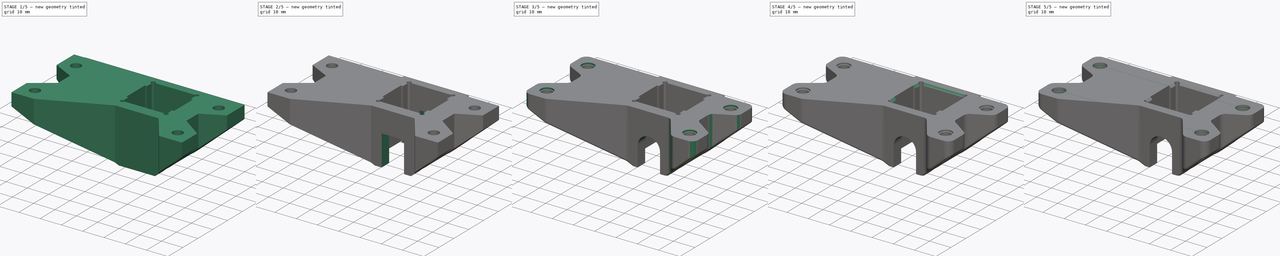
[diagram: build sequence overview — one tinted view per stage of 5, left to right]
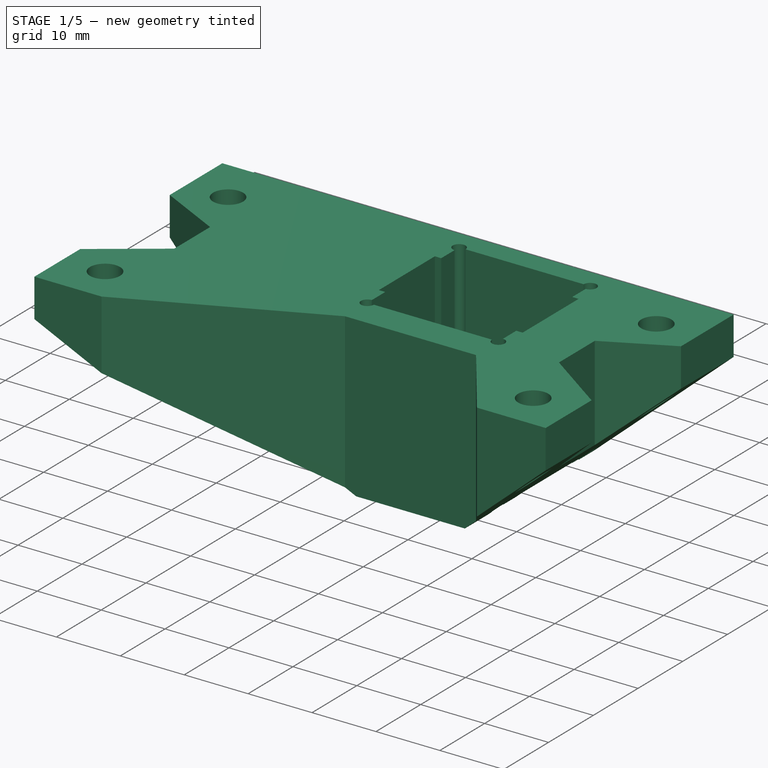
[diagram: stage 1 of 5 — iso view after this stage's code; geometry added in this stage tinted green]
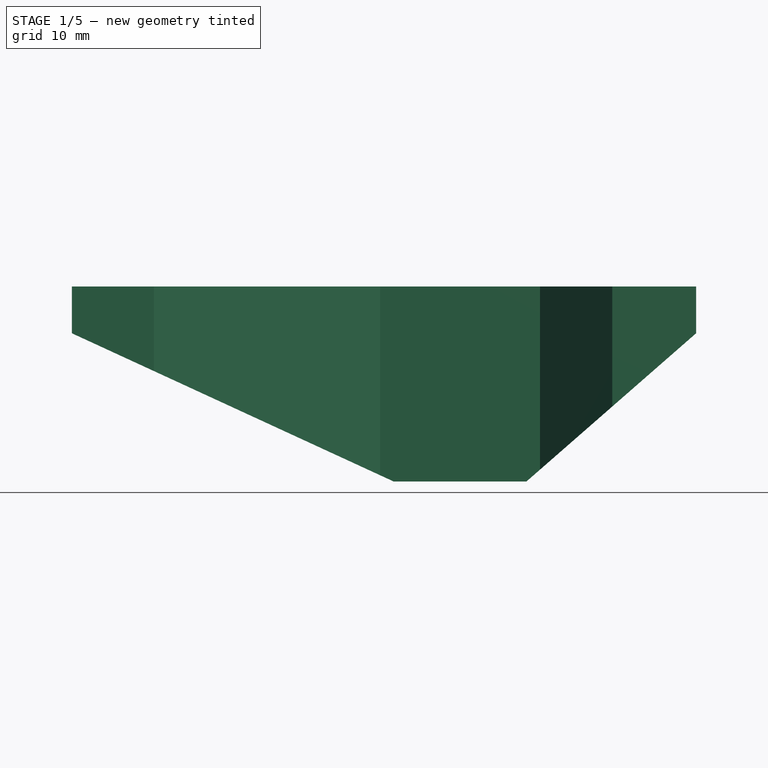
[diagram: stage 1 of 5 — front view after this stage's code; geometry added in this stage tinted green]
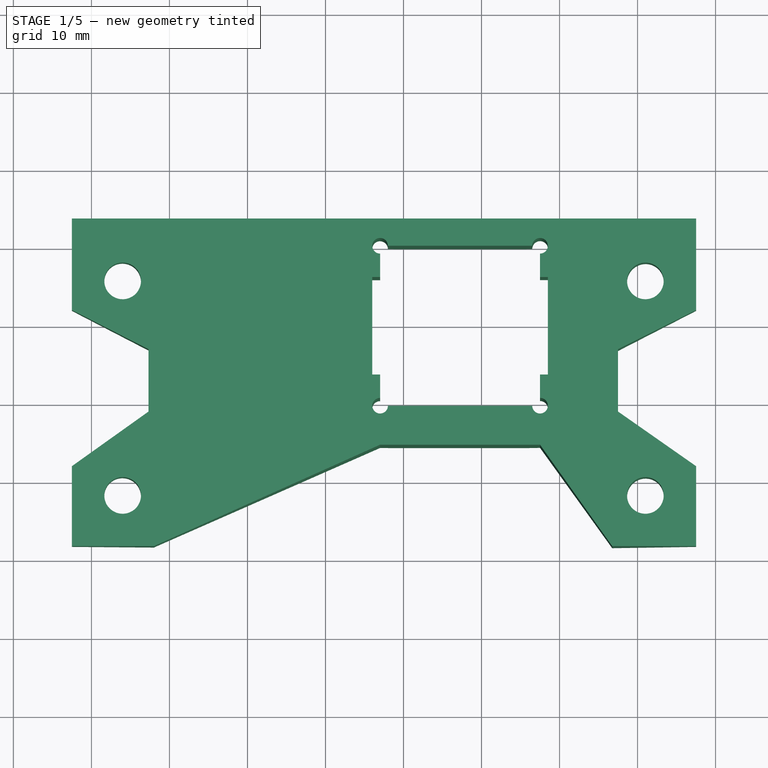
[diagram: stage 1 of 5 — top view after this stage's code; geometry added in this stage tinted green]
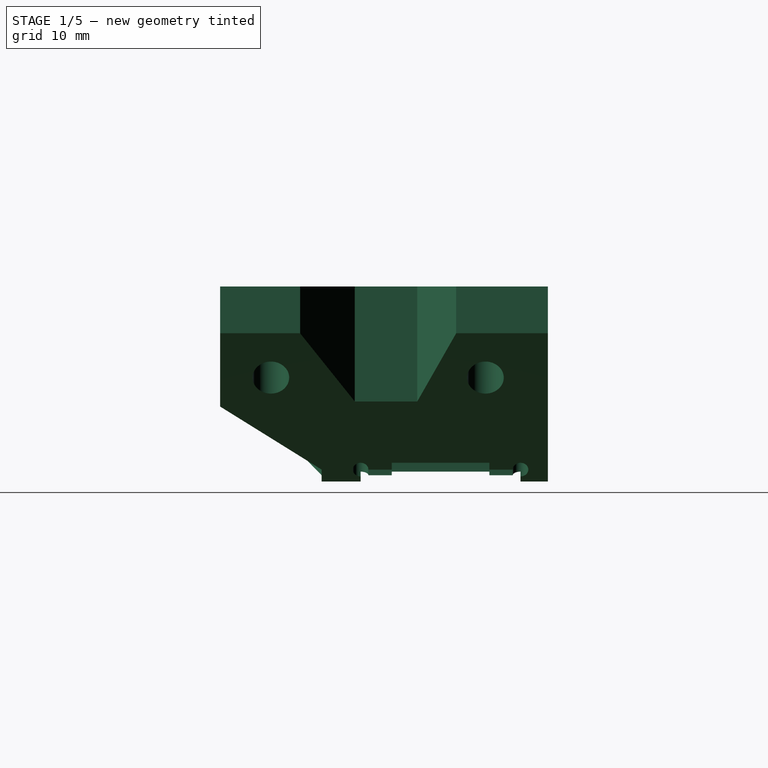
[diagram: stage 1 of 5 — right view after this stage's code; geometry added in this stage tinted green]
FCSTD DOCUMENT  (FreeCAD 0.18R4 (GitTag))
Label: Y_idler_housing_v0.2
License: CreativeCommons Attribution-ShareAlike
LicenseURL: http://creativecommons.org/licenses/by-sa/4.0/
objects: Sketcher::SketchObject×10, PartDesign::Pocket×9, PartDesign::Fillet×6, App::FeaturePython×2, PartDesign::Chamfer×2, PartDesign::Pad×1, PartDesign::Body×1
note: 39 computed .brp shape members not serialized (recipe doc carries the construction recipe); baked Part::Feature solids carry a one-line shape summary decoded from their .brp

FEATURE [App::FeaturePython] circularEdgeConstraint01  label="circularEdgeConstraint01__y_end_plate_step1_01"  # a2plus constraint (typed FeaturePython)
  Object1 = Y_idler_housing_v3_01
  Object2 = y_end_plate_step1_01
  SubElement1 = Edge64
  SubElement2 = Edge52
  Type = circularEdge
  directionConstraint = 1
  lockRotation = false
  offset = 0
FEATURE [App::FeaturePython] circularEdgeConstraint01_mirror  label="circularEdgeConstraint01__Y_idler_housing_v3_01"  # a2plus constraint (typed FeaturePython)
  Object1 = Y_idler_housing_v3_01
  Object2 = y_end_plate_step1_01
  SubElement1 = Edge64
  SubElement2 = Edge52
  Type = circularEdge
  directionConstraint = 1
  lockRotation = false
  offset = 0
FEATURE [Sketcher::SketchObject] Sketch
  MapMode = 5
  Support = -> [XY_Plane]
  sketch-geometry (16):
    g0: LineSegment StartX=-42.5 StartY=11.5 StartZ=0 EndX=-42.5 EndY=21.75 EndZ=0
    g1: LineSegment StartX=-42.5 StartY=21.75 StartZ=0 EndX=-32.6869 EndY=28.75 EndZ=0
    g2: LineSegment StartX=-32.6869 StartY=28.75 StartZ=0 EndX=-32.6869 EndY=36.75 EndZ=0
    g3: LineSegment StartX=-32.6869 StartY=36.75 StartZ=0 EndX=-42.5 EndY=41.75 EndZ=0
    g4: LineSegment StartX=-42.5 StartY=41.75 StartZ=0 EndX=-42.5 EndY=53.5 EndZ=0
    g5: LineSegment StartX=-42.5 StartY=53.5 StartZ=0 EndX=37.5 EndY=53.5 EndZ=0
    g6: LineSegment StartX=37.5 StartY=53.5 StartZ=0 EndX=37.5 EndY=41.75 EndZ=0
    g7: LineSegment StartX=37.5 StartY=41.75 StartZ=0 EndX=27.5 EndY=36.7642 EndZ=0
    g8: LineSegment StartX=27.5 StartY=36.7642 StartZ=0 EndX=27.5 EndY=28.7521 EndZ=0
    g9: LineSegment StartX=27.5 StartY=28.7521 StartZ=0 EndX=37.5 EndY=21.75 EndZ=0
    g10: LineSegment StartX=37.5 StartY=21.75 StartZ=0 EndX=37.5 EndY=11.5 EndZ=0
    g11: LineSegment StartX=37.5 StartY=11.5 StartZ=0 EndX=26.75 EndY=11.5 EndZ=0
    g12: LineSegment StartX=26.75 StartY=11.5 StartZ=0 EndX=17.5 EndY=24.5 EndZ=0
    g13: LineSegment StartX=17.5 StartY=24.5 StartZ=0 EndX=-3 EndY=24.5 EndZ=0
    g14: LineSegment StartX=-3 StartY=24.5 StartZ=0 EndX=-32 EndY=11.5 EndZ=0
    g15: LineSegment StartX=-32 StartY=11.5 StartZ=0 EndX=-42.5 EndY=11.5 EndZ=0
  constraints (48):
    c: Vertical(g0)
    c: Coincident(g0,g1)
    c: Coincident(g1,g2)
    c: Vertical(g2)
    c: Coincident(g2,g3)
    c: Coincident(g3,g4)
    c: Vertical(g4)
    c: Coincident(g4,g5)
    c: Horizontal(g5)
    c: DistanceY(g0) = 11.5
    c: DistanceX(g0) = -42.5
    c: DistanceX(g3,g0) = 0
    c: DistanceY(g4) = 53.5
    c: Coincident(g5,g6)
    c: Vertical(g6)
    c: Coincident(g6,g7)
    c: Coincident(g7,g8)
    c: Vertical(g8)
    c: Coincident(g8,g9)
    c: Coincident(g9,g10)
    c: Vertical(g10)
    c: DistanceX(g10) = 37.5
    c: DistanceY(g0,g0) = 10.25
    c: Equal(g10,g0)
    c: DistanceY(g4,g4) = 11.75
    c: Equal(g6,g4)
    c: DistanceX(g9,g6) = 0
    c: Angle(g9) = -0.610865
    c: DistanceX(g9,g9) = 10
    c: Angle(g7) = -2.67908
    c: Coincident(g10,g11)
    c: Horizontal(g11)
    c: Coincident(g11,g12)
    c: Coincident(g12,g13)
    c: Horizontal(g13)
    c: Coincident(g13,g14)
    c: Coincident(g14,g15)
    c: Coincident(g15,g0)
    c: Horizontal(g15)
    c: DistanceX(g15,g15) = 10.5
    c: DistanceX(g14,g14) = 29
    c: DistanceY(g14,g14) = 13
    c: DistanceX(g13,g13) = 20.5
    c: DistanceY(g10) = 11.5
    c: DistanceX(g12,g12) = 9.25
    c: Angle(g3) = 2.67035
    c: DistanceY(g3,g3) = 5
    c: DistanceY(g2,g2) = 8
FEATURE [PartDesign::Pad] Pad
  Length = 25
  Length2 = 100
  Profile = -> Sketch
  Reversed = true
  Type = 0
FEATURE [Sketcher::SketchObject] Sketch001
  ExternalGeometry = -> [Pad]
  MapMode = 5
  Placement = pos=(0,53.5,0) rot=(0,0.707107,0.707107;3.14159rad)
  Support = -> [Pad]
  sketch-geometry (6):
    g0: LineSegment StartX=42.5 StartY=-6 StartZ=0 EndX=1.25 EndY=-25 EndZ=0
    g1: LineSegment StartX=1.25 StartY=-25 StartZ=0 EndX=42.5 EndY=-25 EndZ=0
    g2: LineSegment StartX=42.5 StartY=-25 StartZ=0 EndX=42.5 EndY=-6 EndZ=0
    g3: LineSegment StartX=-37.5 StartY=-6 StartZ=0 EndX=-15.75 EndY=-25 EndZ=0
    g4: LineSegment StartX=-15.75 StartY=-25 StartZ=0 EndX=-37.5 EndY=-25 EndZ=0
    g5: LineSegment StartX=-37.5 StartY=-25 StartZ=0 EndX=-37.5 EndY=-6 EndZ=0
  constraints (16):
    c: Coincident(g0,g1)
    c: Horizontal(g1)
    c: Coincident(g1,g2)
    c: Coincident(g2,g0)
    c: Coincident(g3,g4)
    c: Horizontal(g4)
    c: Coincident(g4,g5)
    c: Coincident(g5,g3)
    c: DistanceY(g5,g5) = 19
    c: DistanceX(g4,g4) = 21.75
    c: DistanceY(g2,g2) = 19
    c: DistanceX(g1,g1) = 41.25
    c: Coincident(g1,g-4)
    c: Coincident(g4,g-3)
    c: PointOnObject(g3,g-3)
    c: PointOnObject(g0,g-4)
FEATURE [PartDesign::Pocket] Pocket
  BaseFeature = -> Pad
  Length = 5
  Length2 = 100
  Profile = -> Sketch001
  Type = 1
FEATURE [Sketcher::SketchObject] Sketch002
  ExternalGeometry = -> [Pocket]
  MapMode = 5
  Placement = pos=(0,0,-25) rot=(1,0,0;3.14159rad)
  sketch-geometry (12):
    g0: LineSegment StartX=-3 StartY=-29.5 StartZ=0 EndX=17.5 EndY=-29.5 EndZ=0
    g1: LineSegment StartX=17.5 StartY=-29.5 StartZ=0 EndX=17.5 EndY=-50 EndZ=0
    g2: LineSegment StartX=17.5 StartY=-50 StartZ=0 EndX=-3 EndY=-50 EndZ=0
    g3: LineSegment StartX=-3 StartY=-50 StartZ=0 EndX=-3 EndY=-29.5 EndZ=0
    g4: Circle CenterX=31 CenterY=-18 CenterZ=0 NormalX=0 NormalY=0 NormalZ=1 AngleXU=0 Radius=2.35
    g5: Circle CenterX=31 CenterY=-45.5 CenterZ=0 NormalX=0 NormalY=0 NormalZ=1 AngleXU=0 Radius=2.35
    g6: Circle CenterX=-36 CenterY=-45.5 CenterZ=0 NormalX=0 NormalY=0 NormalZ=1 AngleXU=0 Radius=2.35
    g7: Circle CenterX=-36 CenterY=-18 CenterZ=0 NormalX=0 NormalY=0 NormalZ=1 AngleXU=0 Radius=2.35
    g8: LineSegment [constr] StartX=-36 StartY=-18 StartZ=0 EndX=31 EndY=-18 EndZ=0
    g9: LineSegment [constr] StartX=31 StartY=-18 StartZ=0 EndX=31 EndY=-45.5 EndZ=0
    g10: LineSegment [constr] StartX=31 StartY=-45.5 StartZ=0 EndX=-36 EndY=-45.5 EndZ=0
    g11: LineSegment [constr] StartX=-36 StartY=-45.5 StartZ=0 EndX=-36 EndY=-18 EndZ=0
  constraints (32):
    c: Coincident(g0,g1)
    c: Coincident(g1,g2)
    c: Coincident(g2,g3)
    c: Coincident(g3,g0)
    c: Horizontal(g0)
    c: Horizontal(g2)
    c: Vertical(g1)
    c: Vertical(g3)
    c: DistanceY(g3,g3) = 20.5
    c: Coincident(g8,g9)
    c: Coincident(g9,g10)
    c: Coincident(g10,g11)
    c: Coincident(g11,g8)
    c: Horizontal(g8)
    c: Horizontal(g10)
    c: Vertical(g9)
    c: Vertical(g11)
    c: Coincident(g8,g7)
    c: Coincident(g9,g5)
    c: Coincident(g4,g8)
    c: Coincident(g6,g10)
    c: Radius(g4) = 2.35
    c: Equal(g4,g5)
    c: Equal(g4,g6)
    c: Equal(g4,g7)
    c: DistanceX(g7,g-3) = -6.5
    c: DistanceY(g7,g-3) = 6.5
    c: DistanceX(g8,g8) = 67
    c: DistanceY(g9,g9) = 27.5
    c: DistanceX(g0,g-4) = 1.75
    c: DistanceY(g0,g-4) = 5
    c: DistanceX(g0,g0) = 20.5
FEATURE [PartDesign::Pocket] Pocket001
  BaseFeature = -> Pocket
  Length = 5
  Length2 = 100
  Profile = -> Sketch002
  Type = 1
FEATURE [Sketcher::SketchObject] Sketch003
  ExternalGeometry = -> [Pocket001]
  MapMode = 5
  Placement = pos=(0,0,-25) rot=(1,0,0;3.14159rad)
  sketch-geometry (8):
    g0: Circle CenterX=-3 CenterY=-29.5 CenterZ=0 NormalX=0 NormalY=0 NormalZ=1 AngleXU=0 Radius=1
    g1: Circle CenterX=17.5 CenterY=-29.5 CenterZ=0 NormalX=0 NormalY=0 NormalZ=1 AngleXU=0 Radius=1
    g2: Circle CenterX=17.5 CenterY=-50 CenterZ=0 NormalX=0 NormalY=0 NormalZ=1 AngleXU=0 Radius=1
    g3: Circle CenterX=-3 CenterY=-50 CenterZ=0 NormalX=0 NormalY=0 NormalZ=1 AngleXU=0 Radius=1
    g4: LineSegment StartX=-4 StartY=-33.5 StartZ=0 EndX=18.5 EndY=-33.5 EndZ=0
    g5: LineSegment StartX=18.5 StartY=-33.5 StartZ=0 EndX=18.5 EndY=-46 EndZ=0
    g6: LineSegment StartX=18.5 StartY=-46 StartZ=0 EndX=-4 EndY=-46 EndZ=0
    g7: LineSegment StartX=-4 StartY=-46 StartZ=0 EndX=-4 EndY=-33.5 EndZ=0
  constraints (21):
    c: Radius(g1) = 1
    c: Equal(g1,g0)
    c: Equal(g1,g3)
    c: Equal(g1,g2)
    c: Coincident(g4,g5)
    c: Coincident(g5,g6)
    c: Coincident(g6,g7)
    c: Coincident(g7,g4)
    c: Horizontal(g4)
    c: Horizontal(g6)
    c: Vertical(g5)
    c: Vertical(g7)
    c: DistanceX(g5,g2) = -1
    c: DistanceY(g5,g2) = -4
    c: DistanceY(g4,g0) = 4
    c: Coincident(g1,g-4)
    c: Coincident(g0,g-3)
    c: DistanceX(g0,g4) = -1
    c: DistanceX(g1,g4) = 1
    c: Coincident(g2,g-4)
    c: Coincident(g3,g-3)
FEATURE [PartDesign::Pocket] Pocket002
  BaseFeature = -> Pocket001
  Length = 5
  Length2 = 100
  Profile = -> Sketch003
  Type = 1
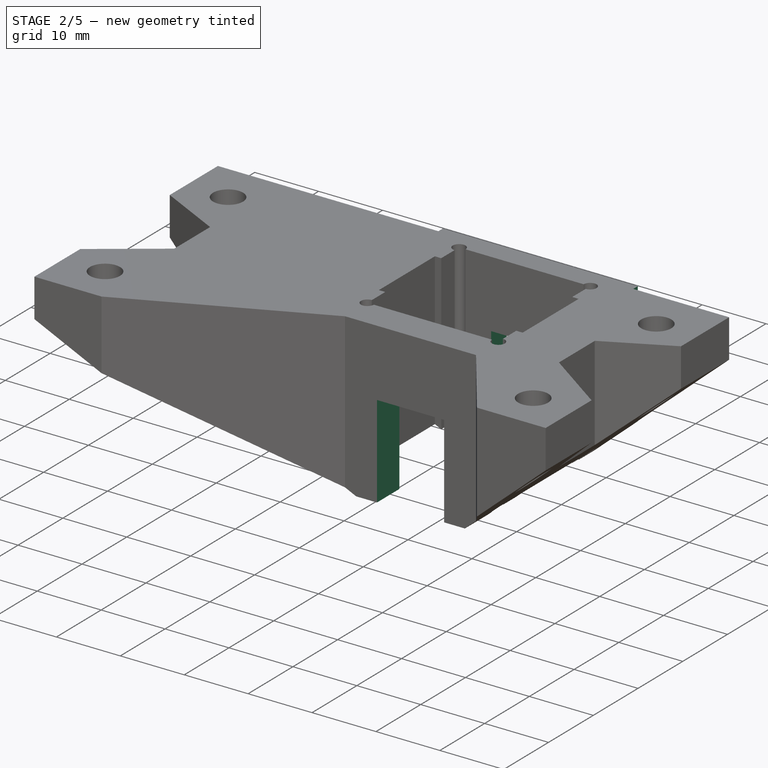
[diagram: stage 2 of 5 — iso view after this stage's code; geometry added in this stage tinted green]
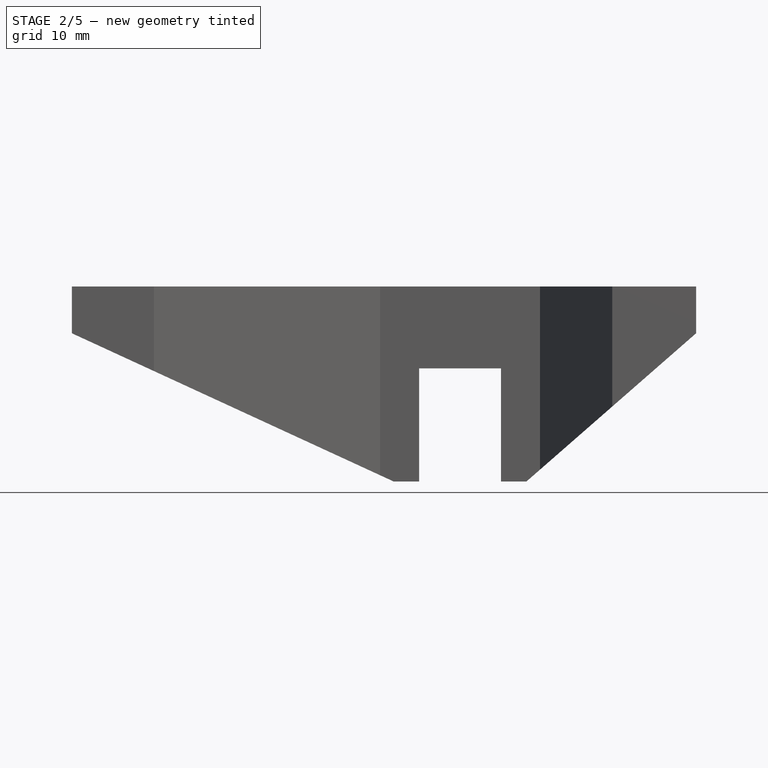
[diagram: stage 2 of 5 — front view after this stage's code; geometry added in this stage tinted green]
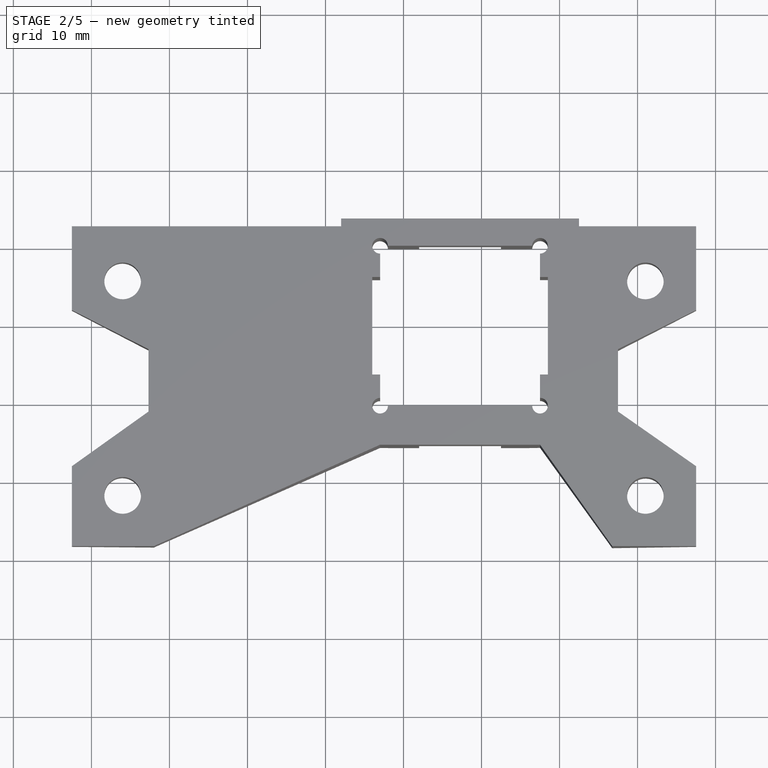
[diagram: stage 2 of 5 — top view after this stage's code; geometry added in this stage tinted green]
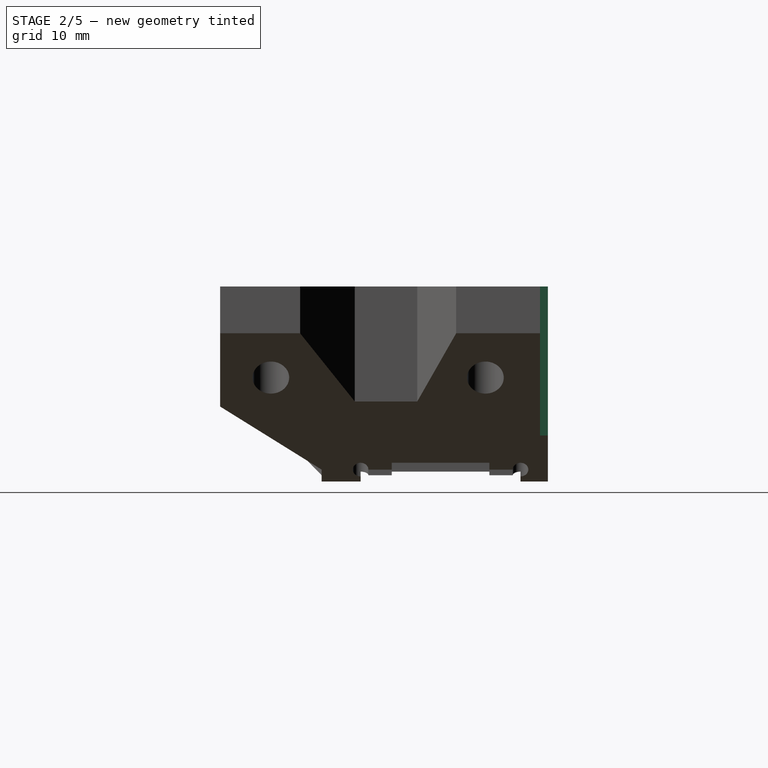
[diagram: stage 2 of 5 — right view after this stage's code; geometry added in this stage tinted green]
FEATURE [Sketcher::SketchObject] Sketch004
  ExternalGeometry = -> [Pocket002]
  MapMode = 5
  Placement = pos=(0,24.5,0) rot=(1,0,0;1.5708rad)
  Support = -> [Pocket002]
  sketch-geometry (4):
    g0: LineSegment StartX=12.5 StartY=-25 StartZ=0 EndX=2 EndY=-25 EndZ=0
    g1: LineSegment StartX=2 StartY=-25 StartZ=0 EndX=2 EndY=-10.5 EndZ=0
    g2: LineSegment StartX=2 StartY=-10.5 StartZ=0 EndX=12.5 EndY=-10.5 EndZ=0
    g3: LineSegment StartX=12.5 StartY=-10.5 StartZ=0 EndX=12.5 EndY=-25 EndZ=0
  constraints (12):
    c: Coincident(g0,g1)
    c: Coincident(g1,g2)
    c: Coincident(g2,g3)
    c: Coincident(g3,g0)
    c: Horizontal(g0)
    c: Horizontal(g2)
    c: Vertical(g1)
    c: Vertical(g3)
    c: DistanceY(g1,g1) = 14.5
    c: DistanceX(g0,g0) = 10.5
    c: PointOnObject(g0,g-3)
    c: DistanceX(g0,g-3) = 3.25
FEATURE [PartDesign::Pocket] Pocket003
  BaseFeature = -> Pocket002
  Length = 5
  Length2 = 100
  Profile = -> Sketch004
  Type = 1
FEATURE [Sketcher::SketchObject] Sketch005
  ExternalGeometry = -> [Pocket003]
  MapMode = 5
  Placement = pos=(0,0,-25) rot=(1,0,0;3.14159rad)
  sketch-geometry (4):
    g0: LineSegment StartX=-32.6869 StartY=-28.75 StartZ=0 EndX=-7.68695 EndY=-29.5 EndZ=0
    g1: LineSegment StartX=-7.68695 StartY=-29.5 StartZ=0 EndX=-7.68695 EndY=-50 EndZ=0
    g2: LineSegment StartX=-7.68695 StartY=-50 StartZ=0 EndX=-32.6869 EndY=-36.75 EndZ=0
    g3: LineSegment StartX=-32.6869 StartY=-36.75 StartZ=0 EndX=-32.6869 EndY=-28.75 EndZ=0
  constraints (10):
    c: Coincident(g0,g1)
    c: Vertical(g1)
    c: Coincident(g1,g2)
    c: Coincident(g2,g3)
    c: Coincident(g3,g0)
    c: DistanceY(g0,g0) = 0.75
    c: DistanceX(g0,g0) = 25
    c: DistanceY(g1,g1) = 20.5
    c: Coincident(g0,g-3)
    c: Coincident(g2,g-4)
FEATURE [PartDesign::Pocket] Pocket004
  BaseFeature = -> Pocket003
  Length = 18
  Length2 = 100
  Profile = -> Sketch005
  Type = 0
FEATURE [Sketcher::SketchObject] Sketch006
  ExternalGeometry = -> [Pocket004]
  MapMode = 5
  Support = -> [Pocket004]
  sketch-geometry (8):
    g0: LineSegment StartX=37.5 StartY=53.5 StartZ=0 EndX=22.5 EndY=53.5 EndZ=0
    g1: LineSegment StartX=22.5 StartY=53.5 StartZ=0 EndX=22.5 EndY=52.5 EndZ=0
    g2: LineSegment StartX=22.5 StartY=52.5 StartZ=0 EndX=37.5 EndY=52.5 EndZ=0
    g3: LineSegment StartX=37.5 StartY=52.5 StartZ=0 EndX=37.5 EndY=53.5 EndZ=0
    g4: LineSegment StartX=-42.5 StartY=53.5 StartZ=0 EndX=-8 EndY=53.5 EndZ=0
    g5: LineSegment StartX=-8 StartY=53.5 StartZ=0 EndX=-8 EndY=52.5 EndZ=0
    g6: LineSegment StartX=-8 StartY=52.5 StartZ=0 EndX=-42.5 EndY=52.5 EndZ=0
    g7: LineSegment StartX=-42.5 StartY=52.5 StartZ=0 EndX=-42.5 EndY=53.5 EndZ=0
  constraints (22):
    c: Coincident(g0,g1)
    c: Coincident(g1,g2)
    c: Coincident(g2,g3)
    c: Coincident(g3,g0)
    c: Horizontal(g0)
    c: Horizontal(g2)
    c: Vertical(g1)
    c: Vertical(g3)
    c: Coincident(g0,g-3)
    c: Coincident(g4,g5)
    c: Coincident(g5,g6)
    c: Coincident(g6,g7)
    c: Coincident(g7,g4)
    c: Horizontal(g4)
    c: Horizontal(g6)
    c: Vertical(g5)
    c: Vertical(g7)
    c: Coincident(g4,g-3)
    c: DistanceY(g5,g5) = 1
    c: Equal(g1,g5)
    c: DistanceX(g-5,g1) = 5
    c: DistanceX(g5,g-4) = 5
FEATURE [PartDesign::Pocket] Pocket005
  BaseFeature = -> Pocket004
  Length = 5
  Length2 = 100
  Profile = -> Sketch006
  Type = 1
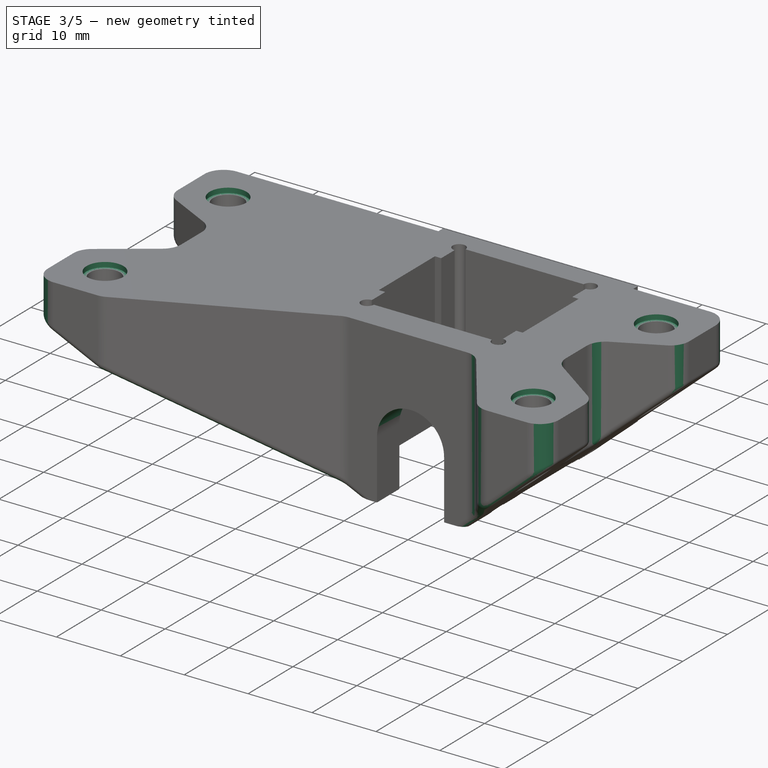
[diagram: stage 3 of 5 — iso view after this stage's code; geometry added in this stage tinted green]
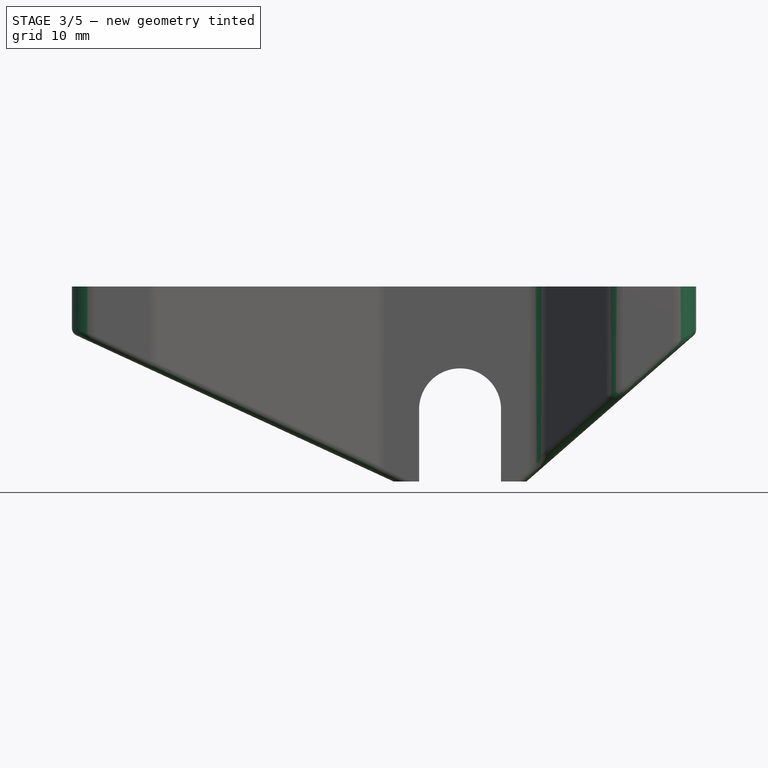
[diagram: stage 3 of 5 — front view after this stage's code; geometry added in this stage tinted green]
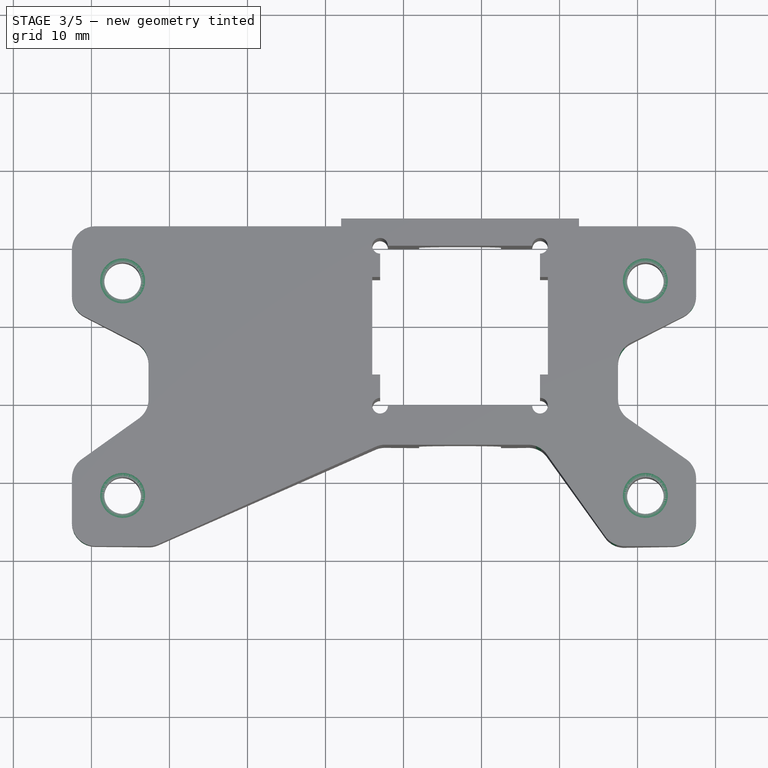
[diagram: stage 3 of 5 — top view after this stage's code; geometry added in this stage tinted green]
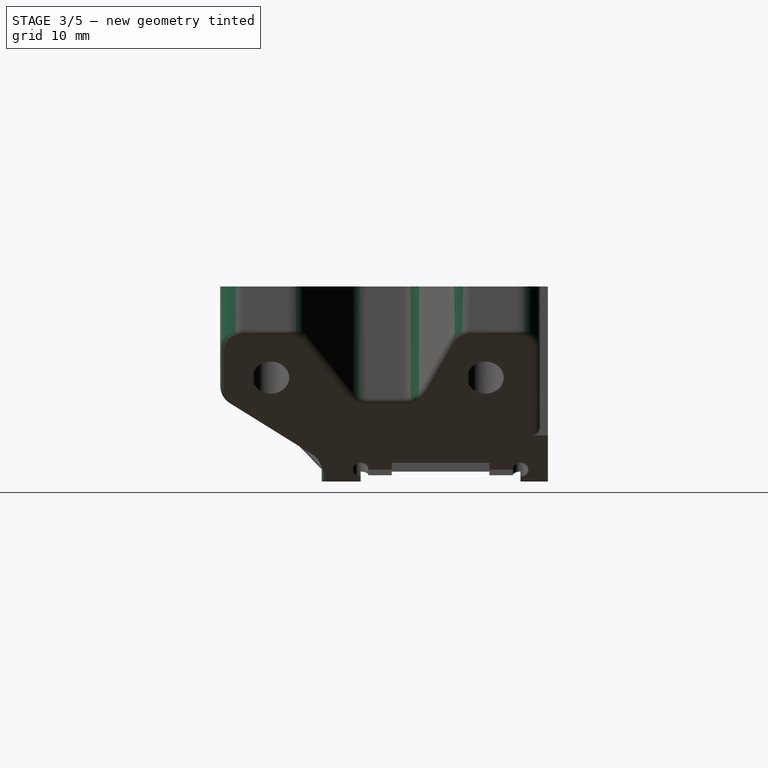
[diagram: stage 3 of 5 — right view after this stage's code; geometry added in this stage tinted green]
FEATURE [Sketcher::SketchObject] Sketch008
  MapMode = 5
  sketch-geometry (8):
    g0: Circle CenterX=-36 CenterY=45.5 CenterZ=0 NormalX=0 NormalY=0 NormalZ=1 AngleXU=0 Radius=2.875
    g1: Circle CenterX=-36 CenterY=18 CenterZ=0 NormalX=0 NormalY=0 NormalZ=1 AngleXU=0 Radius=2.875
    g2: Circle CenterX=31 CenterY=18 CenterZ=0 NormalX=0 NormalY=0 NormalZ=1 AngleXU=0 Radius=2.875
    g3: Circle CenterX=31 CenterY=45.5 CenterZ=0 NormalX=0 NormalY=0 NormalZ=1 AngleXU=0 Radius=2.875
    g4: LineSegment [constr] StartX=31 StartY=45.5 StartZ=0 EndX=-36 EndY=45.5 EndZ=0
    g5: LineSegment [constr] StartX=-36 StartY=45.5 StartZ=0 EndX=-36 EndY=18 EndZ=0
    g6: LineSegment [constr] StartX=-36 StartY=18 StartZ=0 EndX=31 EndY=18 EndZ=0
    g7: LineSegment [constr] StartX=31 StartY=18 StartZ=0 EndX=31 EndY=45.5 EndZ=0
  constraints (20):
    c: Radius(g3) = 2.875
    c: Equal(g3,g2)
    c: Equal(g3,g1)
    c: Equal(g3,g0)
    c: DistanceX(g3) = 31
    c: DistanceY(g3) = 45.5
    c: Coincident(g4,g5)
    c: Coincident(g5,g6)
    c: Coincident(g6,g7)
    c: Coincident(g7,g4)
    c: Horizontal(g4)
    c: Horizontal(g6)
    c: Vertical(g5)
    c: Vertical(g7)
    c: Coincident(g4,g3)
    c: Coincident(g5,g1)
    c: DistanceX(g4,g4) = 67
    c: DistanceY(g7,g7) = 27.5
    c: Coincident(g2,g6)
    c: Coincident(g0,g4)
FEATURE [PartDesign::Pocket] Pocket006
  BaseFeature = -> Pocket005
  Length = 0.75
  Length2 = 100
  Profile = -> Sketch008
  Refine = true
  Type = 0
FEATURE [PartDesign::Fillet] Fillet
  Base = -> Pocket006 [Edge97,Edge94,Edge91,Edge87,Edge81,Edge100,Edge109,Edge92,Edge88,Edge84,Edge46,Edge2,Edge4,Edge73,Edge74,Edge83]
  BaseFeature = -> Pocket006
  Radius = 3
FEATURE [PartDesign::Fillet] Fillet001
  Base = -> Fillet [Edge69,Edge114,Edge91]
  BaseFeature = -> Fillet
  Radius = 0.99
FEATURE [PartDesign::Fillet] Fillet002
  Base = -> Fillet001 [Edge293,Edge292,Edge258,Edge259]
  BaseFeature = -> Fillet001
  Radius = 5.24
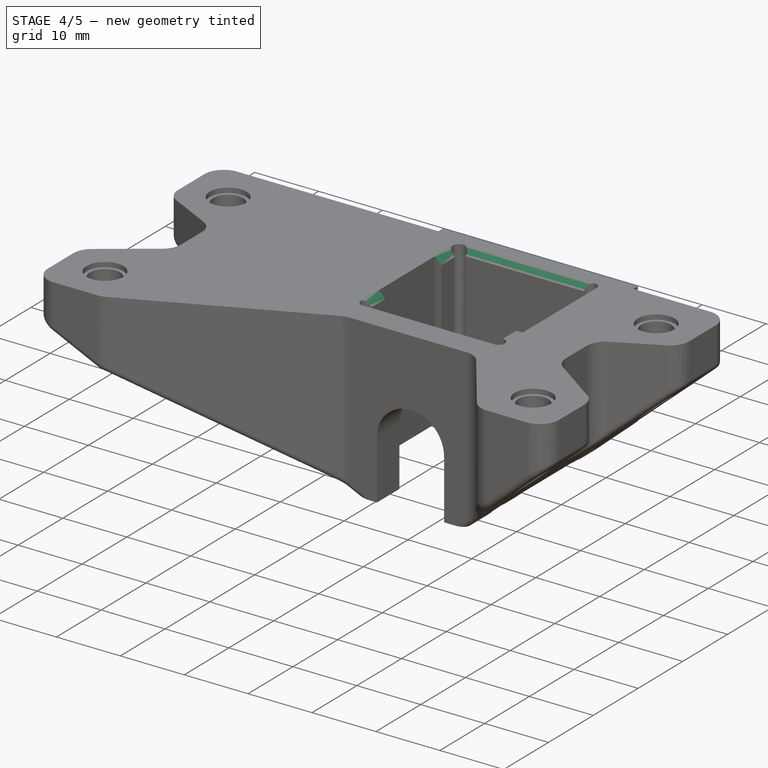
[diagram: stage 4 of 5 — iso view after this stage's code; geometry added in this stage tinted green]
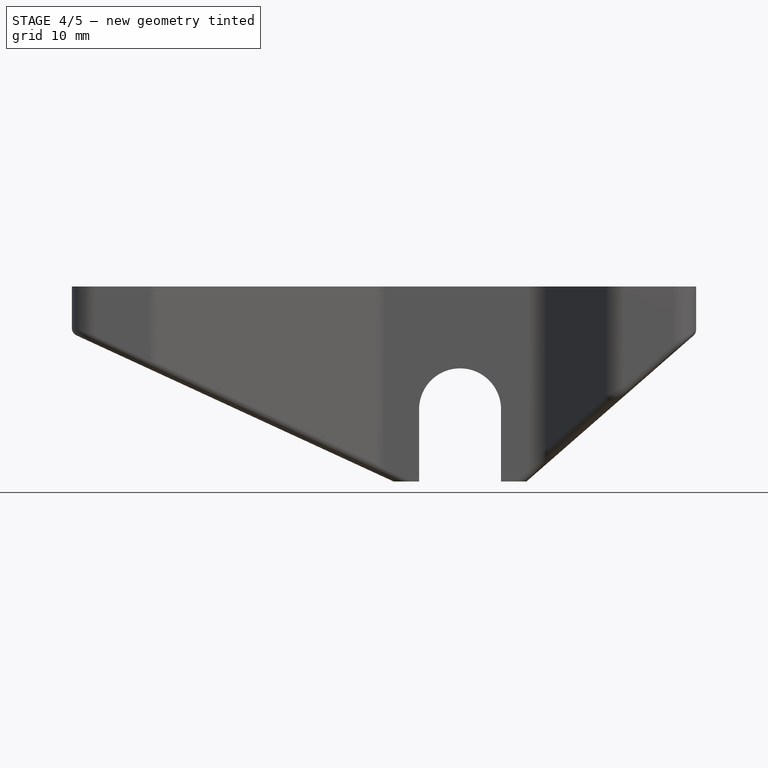
[diagram: stage 4 of 5 — front view after this stage's code; geometry added in this stage tinted green]
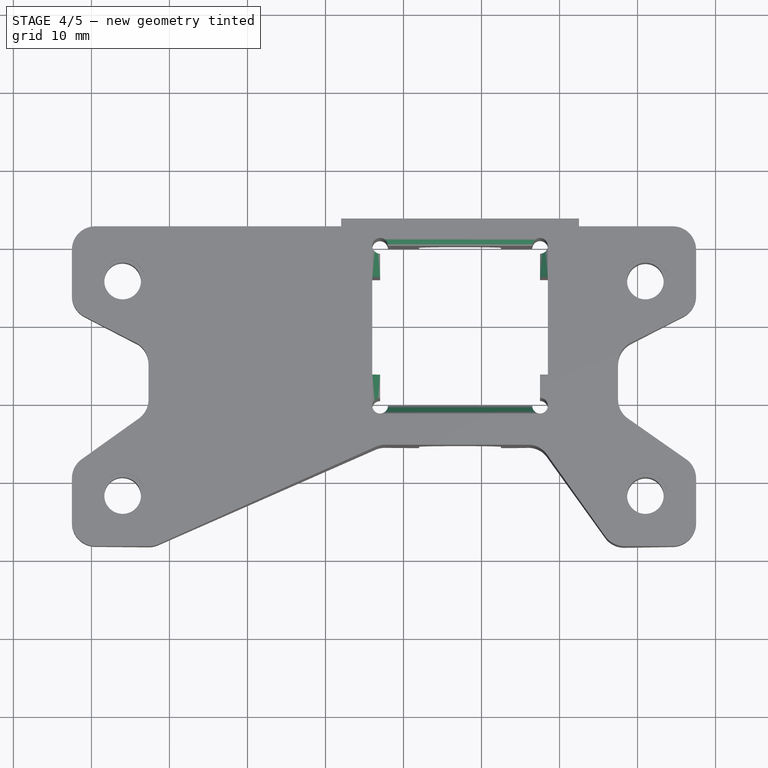
[diagram: stage 4 of 5 — top view after this stage's code; geometry added in this stage tinted green]
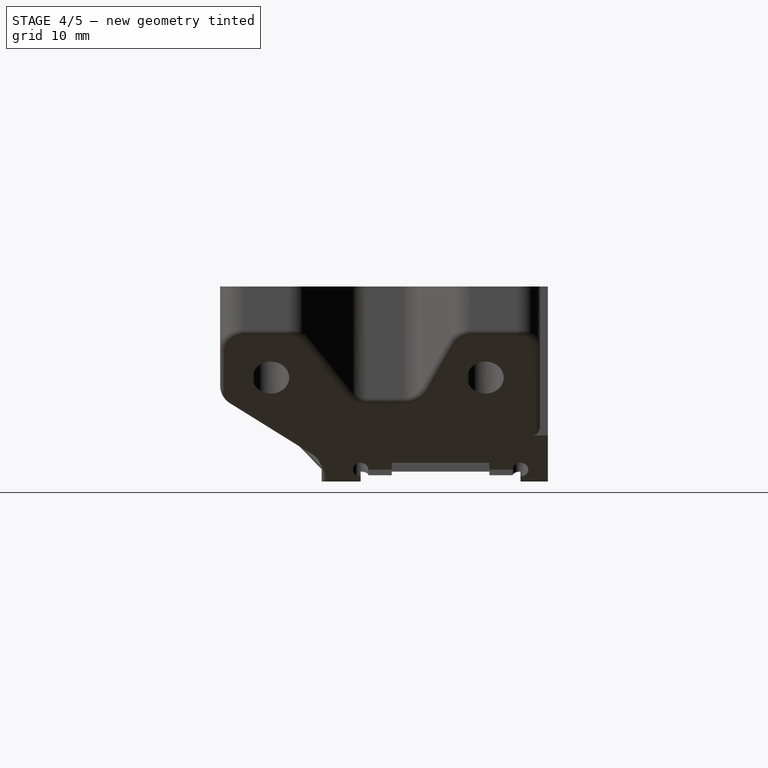
[diagram: stage 4 of 5 — right view after this stage's code; geometry added in this stage tinted green]
FEATURE [PartDesign::Chamfer] Chamfer
  Base = -> Fillet002 [Edge82,Edge83,Edge78,Edge70,Edge69]
  BaseFeature = -> Fillet002
  Size = 0.99
FEATURE [PartDesign::Fillet] Fillet003
  Base = -> Chamfer [Edge301,Edge290]
  BaseFeature = -> Chamfer
  Radius = 3
FEATURE [PartDesign::Fillet] Fillet004
  Base = -> Fillet003 [Edge8]
  BaseFeature = -> Fillet003
  Radius = 1
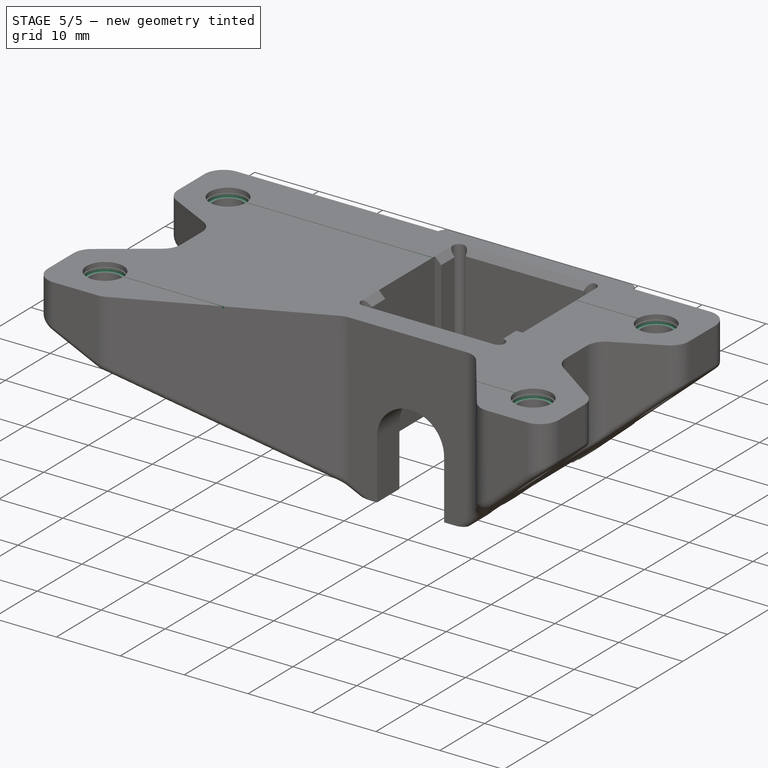
[diagram: stage 5 of 5 — iso view after this stage's code; geometry added in this stage tinted green]
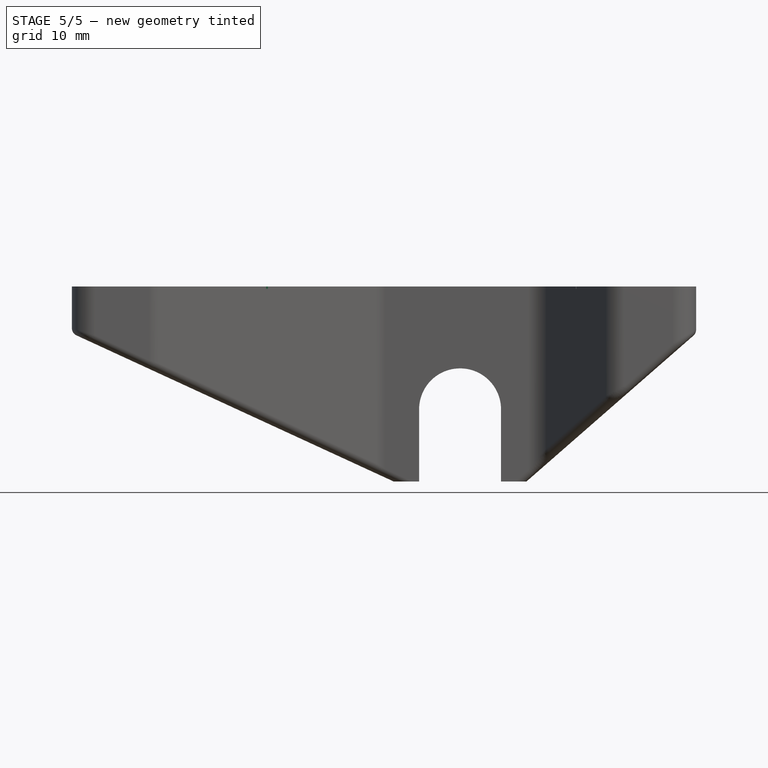
[diagram: stage 5 of 5 — front view after this stage's code; geometry added in this stage tinted green]
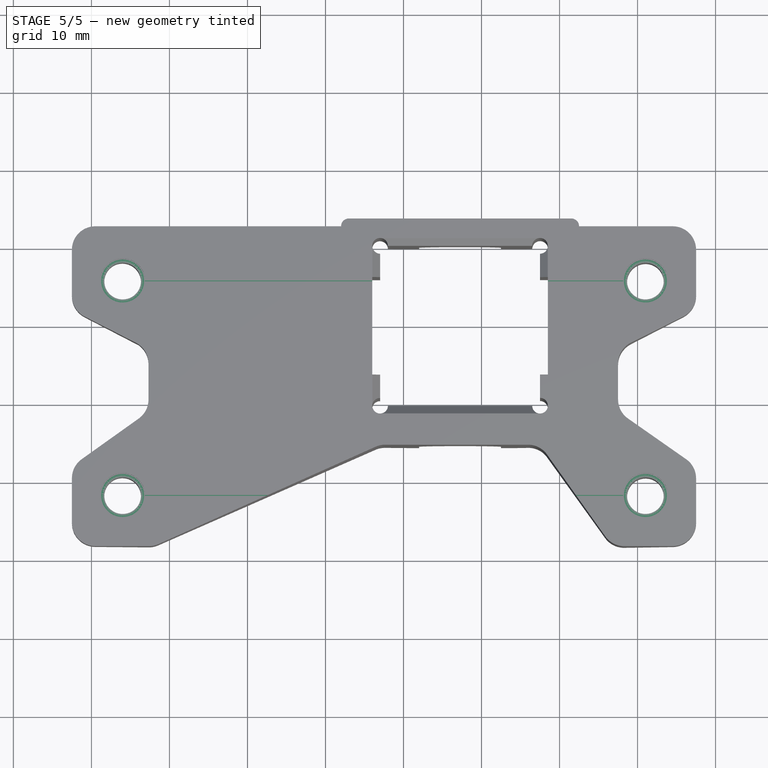
[diagram: stage 5 of 5 — top view after this stage's code; geometry added in this stage tinted green]
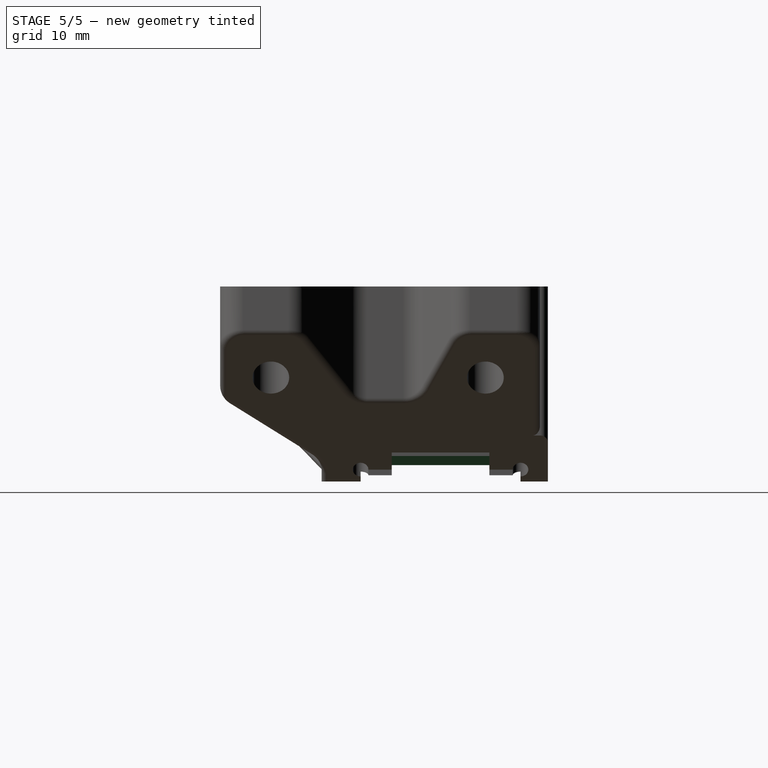
[diagram: stage 5 of 5 — right view after this stage's code; geometry added in this stage tinted green]
FEATURE [PartDesign::Chamfer] Chamfer001
  Base = -> Fillet004 [Edge29,Edge213]
  BaseFeature = -> Fillet004
  Size = 2
FEATURE [PartDesign::Fillet] Fillet005
  Base = -> Chamfer001 [Edge100,Edge103]
  BaseFeature = -> Chamfer001
  Radius = 0.99
FEATURE [Sketcher::SketchObject] Sketch009
  ExternalGeometry = -> [Fillet005]
  MapMode = 5
  Placement = pos=(0,0,-0.75) rot=(0,0,1;0rad)
  Support = -> [Fillet005]
  sketch-geometry (4):
    g0: Circle CenterX=-36 CenterY=45.5 CenterZ=0 NormalX=0 NormalY=0 NormalZ=1 AngleXU=0 Radius=2.75
    g1: Circle CenterX=31 CenterY=45.5 CenterZ=0 NormalX=0 NormalY=0 NormalZ=1 AngleXU=0 Radius=2.75
    g2: Circle CenterX=31 CenterY=18 CenterZ=0 NormalX=0 NormalY=0 NormalZ=1 AngleXU=0 Radius=2.75
    g3: Circle CenterX=-36 CenterY=18 CenterZ=0 NormalX=0 NormalY=0 NormalZ=1 AngleXU=0 Radius=2.75
  constraints (8):
    c: Coincident(g0,g-3)
    c: Coincident(g1,g-6)
    c: Coincident(g2,g-5)
    c: Coincident(g3,g-4)
    c: Radius(g0) = 2.75
    c: Equal(g0,g1)
    c: Equal(g0,g2)
    c: Equal(g0,g3)
FEATURE [PartDesign::Pocket] Pocket007
  BaseFeature = -> Fillet005
  Length = 0.5
  Length2 = 100
  Profile = -> Sketch009
  Refine = true
  Type = 0
FEATURE [Sketcher::SketchObject] Sketch010
  ExternalGeometry = -> [Pocket007]
  MapMode = 5
  Support = -> [Pocket007]
  sketch-geometry (8):
    g0: LineSegment StartX=-33.8746 StartY=45.55 StartZ=0 EndX=28.1254 EndY=45.55 EndZ=0
    g1: LineSegment StartX=28.1254 StartY=45.55 StartZ=0 EndX=28.1254 EndY=45.45 EndZ=0
    g2: LineSegment StartX=28.1254 StartY=45.45 StartZ=0 EndX=-33.8746 EndY=45.45 EndZ=0
    g3: LineSegment StartX=-33.8746 StartY=45.45 StartZ=0 EndX=-33.8746 EndY=45.55 EndZ=0
    g4: LineSegment StartX=-33.8746 StartY=18.05 StartZ=0 EndX=28.1254 EndY=18.05 EndZ=0
    g5: LineSegment StartX=28.1254 StartY=18.05 StartZ=0 EndX=28.1254 EndY=17.95 EndZ=0
    g6: LineSegment StartX=28.1254 StartY=17.95 StartZ=0 EndX=-33.8746 EndY=17.95 EndZ=0
    g7: LineSegment StartX=-33.8746 StartY=17.95 StartZ=0 EndX=-33.8746 EndY=18.05 EndZ=0
  constraints (24):
    c: Coincident(g0,g1)
    c: Coincident(g1,g2)
    c: Coincident(g2,g3)
    c: Coincident(g3,g0)
    c: Horizontal(g0)
    c: Horizontal(g2)
    c: Vertical(g1)
    c: Vertical(g3)
    c: Coincident(g4,g5)
    c: Coincident(g5,g6)
    c: Coincident(g6,g7)
    c: Coincident(g7,g4)
    c: Horizontal(g4)
    c: Horizontal(g6)
    c: Vertical(g5)
    c: Vertical(g7)
    c: DistanceY(g1,g-4) = 0.05
    c: DistanceY(g1,g1) = 0.1
    c: PointOnObject(g1,g-4)
    c: DistanceX(g0,g0) = 62
    c: Equal(g0,g4)
    c: PointOnObject(g5,g-3)
    c: DistanceY(g5,g-3) = 0.05
    c: DistanceY(g5,g5) = 0.1
FEATURE [PartDesign::Pocket] Pocket008
  BaseFeature = -> Pocket007
  Length = 0.3
  Length2 = 100
  Profile = -> Sketch010
  Refine = true
  Type = 0
FEATURE [PartDesign::Body] Body
  Group = -> [Sketch,Sketch001,Sketch002,Sketch003,Sketch004,Sketch005,Pad,Pocket,Pocket001,Pocket002,Pocket003,Pocket004,Sketch006,Pocket005,Sketch008,Pocket006,Fillet,Fillet001,Fillet002,Chamfer,Fillet003,Fillet004,Chamfer001,Fillet005,Sketch009,Pocket007,Sketch010,Pocket008]
  Origin = -> Origin
  Tip = -> Pocket008
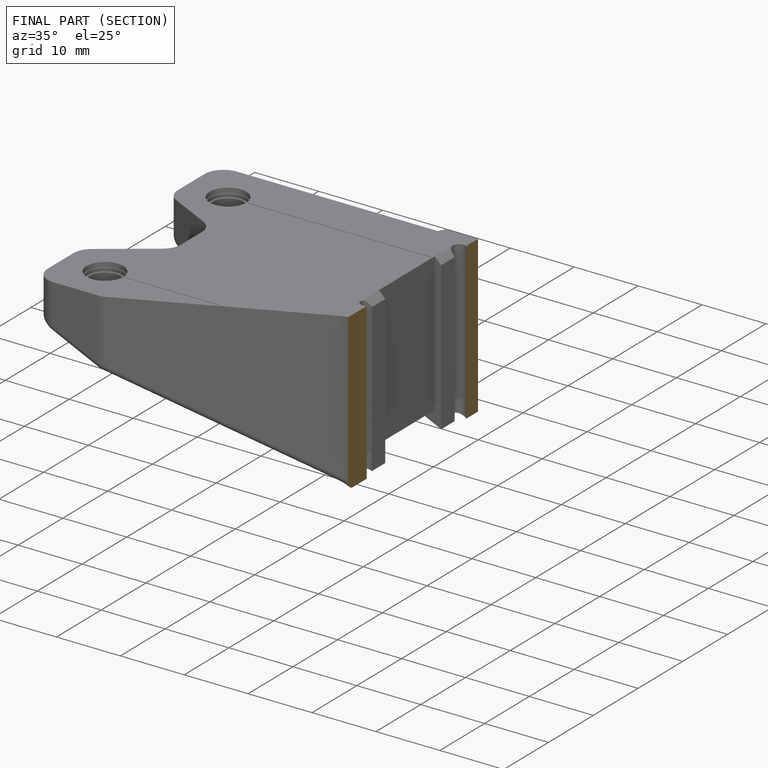
[diagram: finished part — half-section view (interior)]
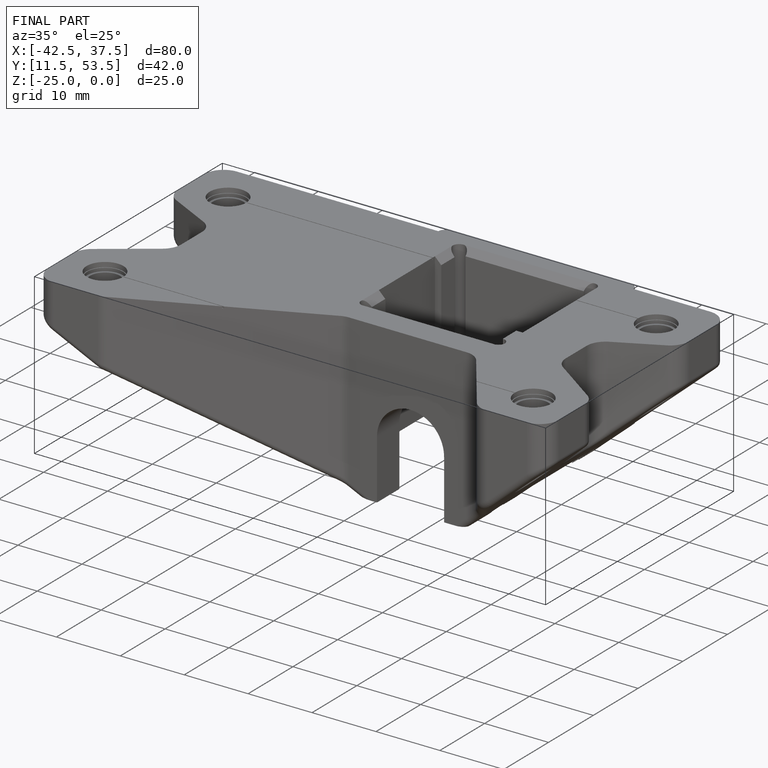
[diagram: finished part — iso view with bounding-box wireframe]
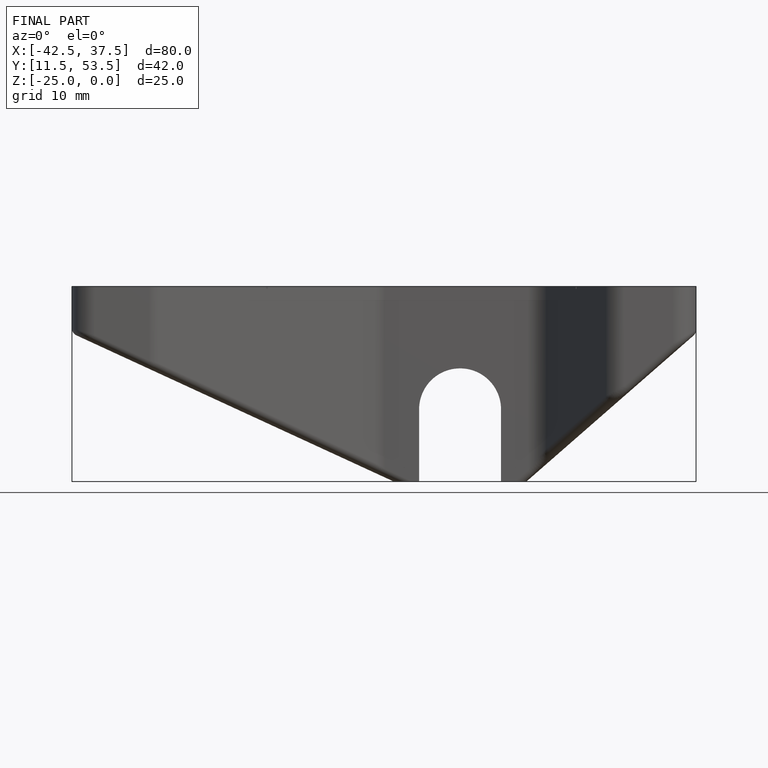
[diagram: finished part — front view with bounding-box wireframe]
